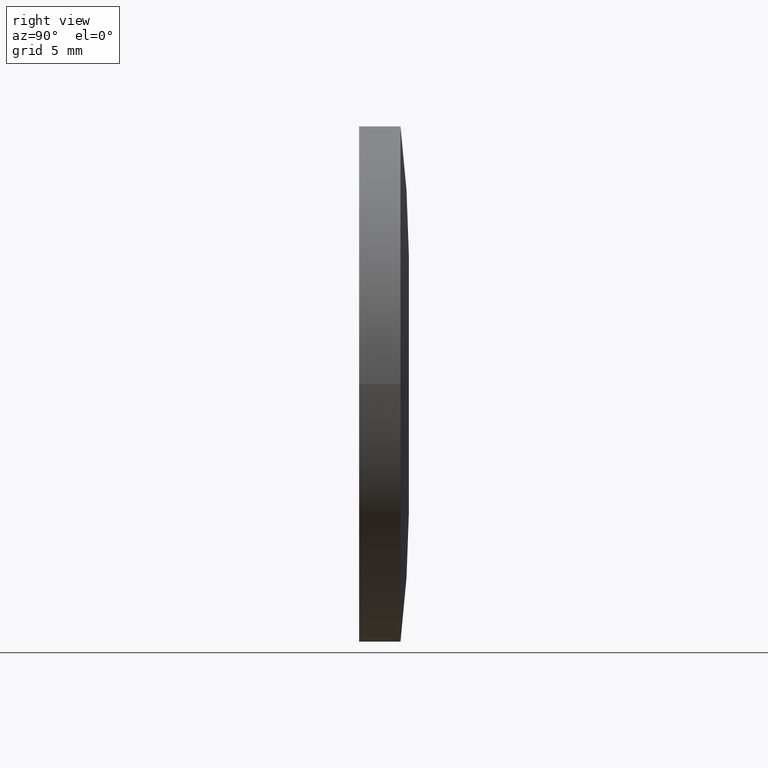
[diagram: clean part render]
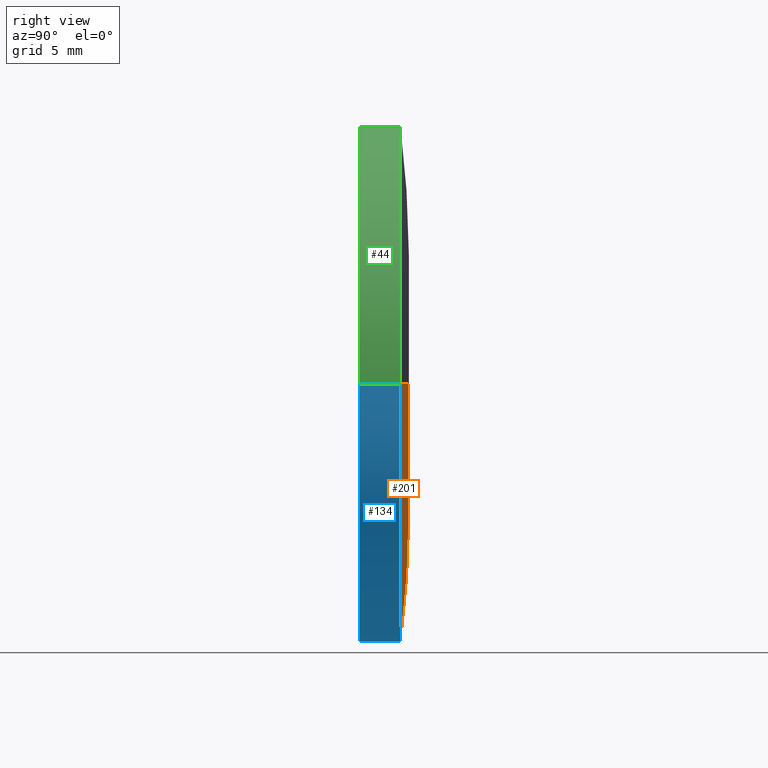
[diagram: same view with three faces highlighted in distinct colors, each labeled with its STEP entity id]
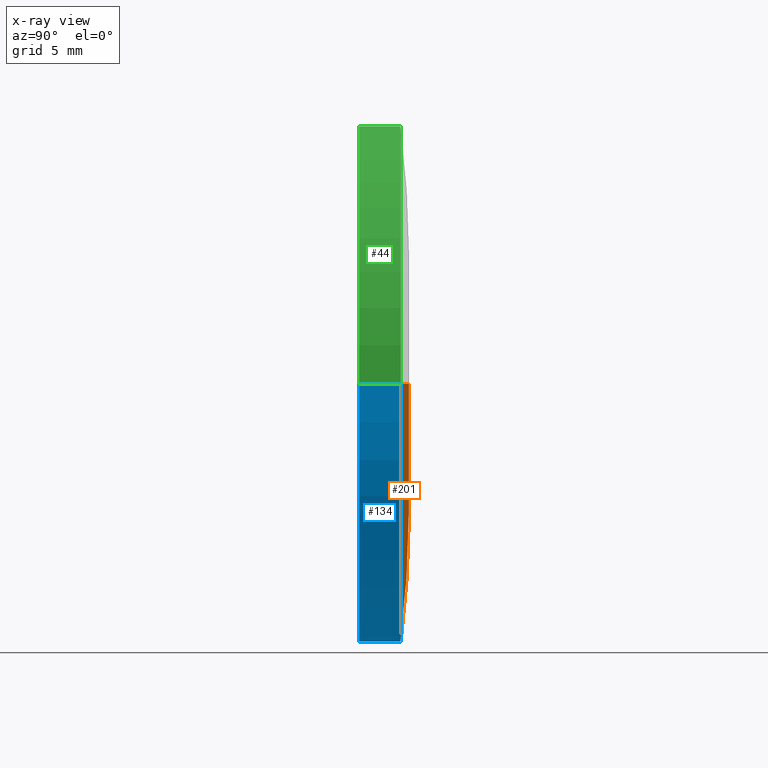
[diagram: x-ray of the same camera — body ghosted, the three highlighted faces saturated]
A machine part, right view with three faces highlighted in distinct colors.
The next image is the same camera in x-ray (body ghosted, the three faces saturated) — at least one of them is partly hidden behind the body in this view.
Their STEP definitions:

[orange] entity #201 — the highlighted toroidal blend (fillet) surface has major radius 5.8413 mm and minor (blend) radius 54.7118 mm.
#3 = DIRECTION ( 'NONE',  ( -1.000000000000000000, 0.000000000000000000, 0.000000000000000000 ) ) ;
#5 = VERTEX_POINT ( 'NONE', #125 ) ;
#6 = CARTESIAN_POINT ( 'NONE',  ( -2.339344410978232820E-19, 1.999999999999998224, 0.000000000000000000 ) ) ;
#9 = DIRECTION ( 'NONE',  ( -1.169672205489117373E-19, 1.000000000000000000, -0.000000000000000000 ) ) ;
#10 = EDGE_CURVE ( 'NONE', #5, #76, #26, .T. ) ;
#17 = AXIS2_PLACEMENT_3D ( 'NONE', #199, #9, #117 ) ;
#26 = CIRCLE ( 'NONE', #52, 54.71175825615954125 ) ;
#40 = VERTEX_POINT ( 'NONE', #77 ) ;
#47 = CARTESIAN_POINT ( 'NONE',  ( -5.841272626530174428, -52.30504434439075112, 0.000000000000000000 ) ) ;
#49 = AXIS2_PLACEMENT_3D ( 'NONE', #6, #85, #100 ) ;
#52 = AXIS2_PLACEMENT_3D ( 'NONE', #47, #115, #3 ) ;
#73 = ORIENTED_EDGE ( 'NONE', *, *, #183, .F. ) ;
#76 = VERTEX_POINT ( 'NONE', #127 ) ;
#77 = CARTESIAN_POINT ( 'NONE',  ( 12.50000000000000355, 1.999999999999996669, 1.530808498934191916E-15 ) ) ;
#85 = DIRECTION ( 'NONE',  ( -1.169672205489117373E-19, 1.000000000000000000, -0.000000000000000000 ) ) ;
#100 = DIRECTION ( 'NONE',  ( -1.000000000000000000, 0.000000000000000000, 0.000000000000000000 ) ) ;
#103 = TOROIDAL_SURFACE ( 'NONE', #17, 5.841272626530174428, 54.71175825615954125 ) ;
#114 = ORIENTED_EDGE ( 'NONE', *, *, #10, .T. ) ;
#115 = DIRECTION ( 'NONE',  ( 0.000000000000000000, -0.000000000000000000, -1.000000000000000000 ) ) ;
#117 = DIRECTION ( 'NONE',  ( -1.000000000000000000, -1.169672205489117373E-19, 0.000000000000000000 ) ) ;
#121 = CARTESIAN_POINT ( 'NONE',  ( 5.841272626530174428, -52.30504434439075112, 7.153495825027232014E-16 ) ) ;
#125 = CARTESIAN_POINT ( 'NONE',  ( -12.50000000000000355, 1.999999999999996669, 0.000000000000000000 ) ) ;
#127 = CARTESIAN_POINT ( 'NONE',  ( -2.449293598294211805E-19, 2.093999999999999861, 0.000000000000000000 ) ) ;
#141 = CIRCLE ( 'NONE', #49, 12.50000000000000000 ) ;
#142 = ORIENTED_EDGE ( 'NONE', *, *, #193, .T. ) ;
#148 = FACE_OUTER_BOUND ( 'NONE', #154, .T. ) ;
#149 = AXIS2_PLACEMENT_3D ( 'NONE', #121, #157, #181 ) ;
#154 = EDGE_LOOP ( 'NONE', ( #73, #142, #114 ) ) ;
#157 = DIRECTION ( 'NONE',  ( -1.224646799147353207E-16, -1.432435322503872809E-35, 1.000000000000000000 ) ) ;
#161 = CIRCLE ( 'NONE', #149, 54.71175825615954125 ) ;
#181 = DIRECTION ( 'NONE',  ( 1.000000000000000000, 0.000000000000000000, 1.224646799147353454E-16 ) ) ;
#183 = EDGE_CURVE ( 'NONE', #40, #76, #161, .T. ) ;
#193 = EDGE_CURVE ( 'NONE', #40, #5, #141, .T. ) ;
#199 = CARTESIAN_POINT ( 'NONE',  ( 0.000000000000000000, -52.30504434439075112, 0.000000000000000000 ) ) ;
#201 = ADVANCED_FACE ( 'NONE', ( #148 ), #103, .T. ) ;

[blue] entity #134 — the highlighted cylindrical surface (partial cylindrical patch) has radius 12.5 mm, axis along (-0, 1, -0).
#5 = VERTEX_POINT ( 'NONE', #125 ) ;
#6 = CARTESIAN_POINT ( 'NONE',  ( -2.339344410978232820E-19, 1.999999999999998224, 0.000000000000000000 ) ) ;
#16 = ORIENTED_EDGE ( 'NONE', *, *, #29, .F. ) ;
#18 = CARTESIAN_POINT ( 'NONE',  ( 1.880790961315660013E-34, -1.734723475976807094E-15, 0.000000000000000000 ) ) ;
#19 = CIRCLE ( 'NONE', #36, 12.50000000000000000 ) ;
#23 = EDGE_CURVE ( 'NONE', #173, #5, #58, .T. ) ;
#27 = DIRECTION ( 'NONE',  ( -1.000000000000000000, -1.169672205489146743E-19, 0.000000000000000000 ) ) ;
#29 = EDGE_CURVE ( 'NONE', #182, #40, #109, .T. ) ;
#36 = AXIS2_PLACEMENT_3D ( 'NONE', #18, #43, #27 ) ;
#38 = DIRECTION ( 'NONE',  ( -1.000000000000000000, 0.000000000000000000, 0.000000000000000000 ) ) ;
#39 = CARTESIAN_POINT ( 'NONE',  ( -2.449293598294211805E-19, 2.093999999999999861, 0.000000000000000000 ) ) ;
#40 = VERTEX_POINT ( 'NONE', #77 ) ;
#43 = DIRECTION ( 'NONE',  ( -1.169672205489117373E-19, 1.000000000000000000, -0.000000000000000000 ) ) ;
#46 = AXIS2_PLACEMENT_3D ( 'NONE', #39, #84, #38 ) ;
#49 = AXIS2_PLACEMENT_3D ( 'NONE', #6, #85, #100 ) ;
#53 = FACE_OUTER_BOUND ( 'NONE', #165, .T. ) ;
#58 = LINE ( 'NONE', #189, #113 ) ;
#61 = ORIENTED_EDGE ( 'NONE', *, *, #97, .T. ) ;
#66 = CARTESIAN_POINT ( 'NONE',  ( 12.50000000000000000, -1.733261385719945655E-15, 1.530808498934191521E-15 ) ) ;
#77 = CARTESIAN_POINT ( 'NONE',  ( 12.50000000000000355, 1.999999999999996669, 1.530808498934191916E-15 ) ) ;
#84 = DIRECTION ( 'NONE',  ( -1.169672205489117373E-19, 1.000000000000000000, -0.000000000000000000 ) ) ;
#85 = DIRECTION ( 'NONE',  ( -1.169672205489117373E-19, 1.000000000000000000, -0.000000000000000000 ) ) ;
#86 = CYLINDRICAL_SURFACE ( 'NONE', #46, 12.50000000000000000 ) ;
#97 = EDGE_CURVE ( 'NONE', #182, #173, #19, .T. ) ;
#100 = DIRECTION ( 'NONE',  ( -1.000000000000000000, 0.000000000000000000, 0.000000000000000000 ) ) ;
#109 = LINE ( 'NONE', #176, #144 ) ;
#113 = VECTOR ( 'NONE', #174, 1000.000000000000000 ) ;
#119 = CARTESIAN_POINT ( 'NONE',  ( -12.50000000000000000, -1.736185566233668534E-15, 0.000000000000000000 ) ) ;
#125 = CARTESIAN_POINT ( 'NONE',  ( -12.50000000000000355, 1.999999999999996669, 0.000000000000000000 ) ) ;
#126 = DIRECTION ( 'NONE',  ( -1.169672205489117373E-19, 1.000000000000000000, -0.000000000000000000 ) ) ;
#134 = ADVANCED_FACE ( 'NONE', ( #53 ), #86, .T. ) ;
#141 = CIRCLE ( 'NONE', #49, 12.50000000000000000 ) ;
#143 = ORIENTED_EDGE ( 'NONE', *, *, #23, .T. ) ;
#144 = VECTOR ( 'NONE', #126, 1000.000000000000000 ) ;
#155 = ORIENTED_EDGE ( 'NONE', *, *, #193, .F. ) ;
#165 = EDGE_LOOP ( 'NONE', ( #16, #61, #143, #155 ) ) ;
#173 = VERTEX_POINT ( 'NONE', #119 ) ;
#174 = DIRECTION ( 'NONE',  ( -1.169672205489117373E-19, 1.000000000000000000, -0.000000000000000000 ) ) ;
#176 = CARTESIAN_POINT ( 'NONE',  ( 12.50000000000000000, 2.093999999999999861, 1.530808498934191521E-15 ) ) ;
#182 = VERTEX_POINT ( 'NONE', #66 ) ;
#189 = CARTESIAN_POINT ( 'NONE',  ( -12.50000000000000000, 2.093999999999999861, 0.000000000000000000 ) ) ;
#193 = EDGE_CURVE ( 'NONE', #40, #5, #141, .T. ) ;

[green] entity #44 — the highlighted cylindrical surface (partial cylindrical patch) has radius 12.5 mm, axis along (-0, 1, -0).
#2 = ORIENTED_EDGE ( 'NONE', *, *, #57, .T. ) ;
#4 = DIRECTION ( 'NONE',  ( -1.000000000000000000, -1.169672205489146743E-19, 0.000000000000000000 ) ) ;
#5 = VERTEX_POINT ( 'NONE', #125 ) ;
#23 = EDGE_CURVE ( 'NONE', #173, #5, #58, .T. ) ;
#29 = EDGE_CURVE ( 'NONE', #182, #40, #109, .T. ) ;
#30 = FACE_OUTER_BOUND ( 'NONE', #59, .T. ) ;
#32 = CYLINDRICAL_SURFACE ( 'NONE', #168, 12.50000000000000000 ) ;
#40 = VERTEX_POINT ( 'NONE', #77 ) ;
#44 = ADVANCED_FACE ( 'NONE', ( #30 ), #32, .T. ) ;
#54 = CARTESIAN_POINT ( 'NONE',  ( -2.339344410978232820E-19, 1.999999999999998224, 0.000000000000000000 ) ) ;
#57 = EDGE_CURVE ( 'NONE', #173, #182, #128, .T. ) ;
#58 = LINE ( 'NONE', #189, #113 ) ;
#59 = EDGE_LOOP ( 'NONE', ( #2, #71, #70, #91 ) ) ;
#66 = CARTESIAN_POINT ( 'NONE',  ( 12.50000000000000000, -1.733261385719945655E-15, 1.530808498934191521E-15 ) ) ;
#69 = CIRCLE ( 'NONE', #136, 12.50000000000000000 ) ;
#70 = ORIENTED_EDGE ( 'NONE', *, *, #120, .F. ) ;
#71 = ORIENTED_EDGE ( 'NONE', *, *, #29, .T. ) ;
#77 = CARTESIAN_POINT ( 'NONE',  ( 12.50000000000000355, 1.999999999999996669, 1.530808498934191916E-15 ) ) ;
#79 = AXIS2_PLACEMENT_3D ( 'NONE', #89, #92, #4 ) ;
#89 = CARTESIAN_POINT ( 'NONE',  ( 1.880790961315660013E-34, -1.734723475976807094E-15, 0.000000000000000000 ) ) ;
#91 = ORIENTED_EDGE ( 'NONE', *, *, #23, .F. ) ;
#92 = DIRECTION ( 'NONE',  ( -1.169672205489117373E-19, 1.000000000000000000, -0.000000000000000000 ) ) ;
#95 = DIRECTION ( 'NONE',  ( -1.169672205489117373E-19, 1.000000000000000000, -0.000000000000000000 ) ) ;
#109 = LINE ( 'NONE', #176, #144 ) ;
#112 = DIRECTION ( 'NONE',  ( -1.169672205489117373E-19, 1.000000000000000000, -0.000000000000000000 ) ) ;
#113 = VECTOR ( 'NONE', #174, 1000.000000000000000 ) ;
#119 = CARTESIAN_POINT ( 'NONE',  ( -12.50000000000000000, -1.736185566233668534E-15, 0.000000000000000000 ) ) ;
#120 = EDGE_CURVE ( 'NONE', #5, #40, #69, .T. ) ;
#125 = CARTESIAN_POINT ( 'NONE',  ( -12.50000000000000355, 1.999999999999996669, 0.000000000000000000 ) ) ;
#126 = DIRECTION ( 'NONE',  ( -1.169672205489117373E-19, 1.000000000000000000, -0.000000000000000000 ) ) ;
#128 = CIRCLE ( 'NONE', #79, 12.50000000000000000 ) ;
#136 = AXIS2_PLACEMENT_3D ( 'NONE', #54, #95, #146 ) ;
#144 = VECTOR ( 'NONE', #126, 1000.000000000000000 ) ;
#146 = DIRECTION ( 'NONE',  ( -1.000000000000000000, 0.000000000000000000, 0.000000000000000000 ) ) ;
#151 = DIRECTION ( 'NONE',  ( -1.000000000000000000, 0.000000000000000000, 0.000000000000000000 ) ) ;
#168 = AXIS2_PLACEMENT_3D ( 'NONE', #191, #112, #151 ) ;
#173 = VERTEX_POINT ( 'NONE', #119 ) ;
#174 = DIRECTION ( 'NONE',  ( -1.169672205489117373E-19, 1.000000000000000000, -0.000000000000000000 ) ) ;
#176 = CARTESIAN_POINT ( 'NONE',  ( 12.50000000000000000, 2.093999999999999861, 1.530808498934191521E-15 ) ) ;
#182 = VERTEX_POINT ( 'NONE', #66 ) ;
#189 = CARTESIAN_POINT ( 'NONE',  ( -12.50000000000000000, 2.093999999999999861, 0.000000000000000000 ) ) ;
#191 = CARTESIAN_POINT ( 'NONE',  ( -2.449293598294211805E-19, 2.093999999999999861, 0.000000000000000000 ) ) ;